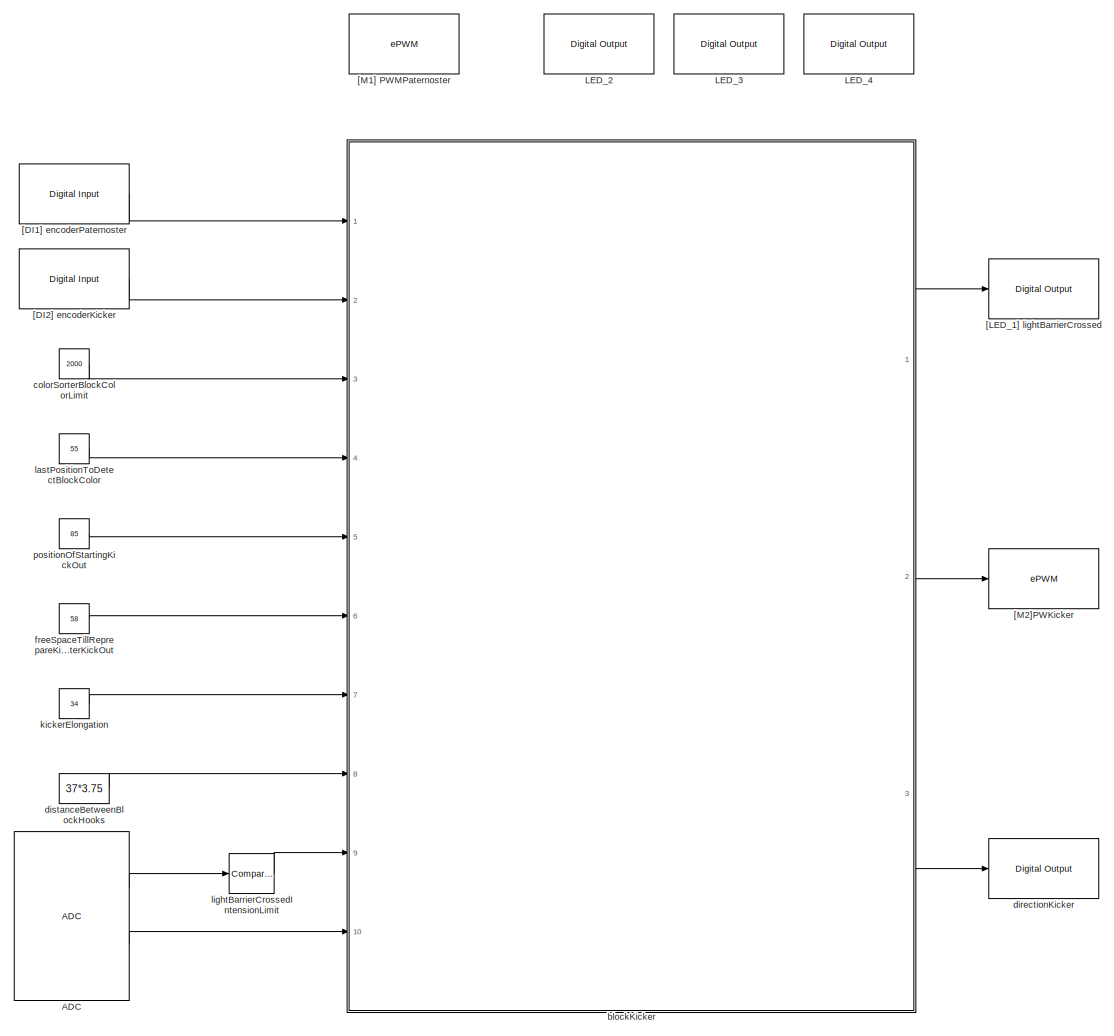
[diagram: root canvas - part 1/1, most of the canvas]
MODEL slx_4a4a8ed545a5
KIND model
BLOCK [Reference] ADC  REF=c280xlib/ADC
  Ports = [0, 2]
  SourceBlock = c280xlib/ADC
  SourceType = C280x/C2833x ADC
  Ts = 0.001
  UserDataPersistent = on
  c28xmultiPort = on
  chdma = 1
  conv0 = ADCINA0
  conv1 = ADCINA1
  conv10 = ADCINB2
  conv11 = ADCINB3
  conv12 = ADCINB4
  conv13 = ADCINB5
  conv14 = ADCINB6
  conv15 = ADCINB7
  conv2 = ADCINA2
  conv3 = ADCINA3
  conv4 = ADCINA4
  conv5 = ADCINA5
  conv6 = ADCINA6
  conv7 = ADCINA7
  conv8 = ADCINB0
  conv9 = ADCINB1
  convA0 = ADCINA0
  convA1 = ADCINA1
  convA2 = ADCINA2
  convA3 = ADCINA3
  convA4 = ADCINA4
  convA5 = ADCINA5
  convA6 = ADCINA6
  convA7 = ADCINA7
  convAB0 = ADCINA0 and ADCINB0
  convAB1 = ADCINA1 and ADCINB1
  convAB2 = ADCINA2 and ADCINB2
  convAB3 = ADCINA3 and ADCINB3
  convAB4 = ADCINA4 and ADCINB4
  convAB5 = ADCINA5 and ADCINB5
  convAB6 = ADCINA6 and ADCINB6
  convAB7 = ADCINA7 and ADCINB7
  convB0 = ADCINB0
  convB1 = ADCINB1
  convB2 = ADCINB2
  convB3 = ADCINB3
  convB4 = ADCINB4
  convB5 = ADCINB5
  convB6 = ADCINB6
  convB7 = ADCINB7
  dType = uint16
  endma = off
  numConversionsDouble = 1
  numConversionsSingle = 2
  postInterrupt = off
  sourceSOC = Software
  sourceSOC1 = Software
  sourceSOC2 = ePWMxB
  useMode = Sequential
  useModule = A
  xint2_ADCSOC = 31
BLOCK [Reference] LED_2  REF=c2833xlib/Digital Output
  GPIO_BIT0_Toggle = off
  GPIO_BIT1_Toggle = off
  GPIO_BIT2_Toggle = off
  GPIO_BIT3_Toggle = on
  GPIO_BIT4_Toggle = off
  GPIO_BIT5_Toggle = off
  GPIO_BIT6_Toggle = off
  GPIO_BIT7_Toggle = off
  GPIO_Bit0 = off
  GPIO_Bit1 = off
  GPIO_Bit2 = off
  GPIO_Bit3 = on
  GPIO_Bit4 = off
  GPIO_Bit5 = off
  GPIO_Bit6 = off
  GPIO_Bit7 = off
  GPIO_Number = GPIO56~GPIO63
  Ports = [1]
  SourceBlock = c2833xlib/Digital Output
  SourceType = C2833x GPIO Digital Output
  UserDataPersistent = on
BLOCK [Reference] LED_3  REF=c2833xlib/Digital Output
  GPIO_BIT0_Toggle = off
  GPIO_BIT1_Toggle = off
  GPIO_BIT2_Toggle = off
  GPIO_BIT3_Toggle = off
  GPIO_BIT4_Toggle = on
  GPIO_BIT5_Toggle = on
  GPIO_BIT6_Toggle = off
  GPIO_BIT7_Toggle = off
  GPIO_Bit0 = off
  GPIO_Bit1 = off
  GPIO_Bit2 = off
  GPIO_Bit3 = off
  GPIO_Bit4 = on
  GPIO_Bit5 = off
  GPIO_Bit6 = off
  GPIO_Bit7 = off
  GPIO_Number = GPIO56~GPIO63
  Ports = [1]
  SourceBlock = c2833xlib/Digital Output
  SourceType = C2833x GPIO Digital Output
  UserDataPersistent = on
BLOCK [Reference] LED_4  REF=c2833xlib/Digital Output
  GPIO_BIT0_Toggle = off
  GPIO_BIT1_Toggle = off
  GPIO_BIT2_Toggle = off
  GPIO_BIT3_Toggle = off
  GPIO_BIT4_Toggle = off
  GPIO_BIT5_Toggle = on
  GPIO_BIT6_Toggle = off
  GPIO_BIT7_Toggle = off
  GPIO_Bit0 = off
  GPIO_Bit1 = off
  GPIO_Bit2 = off
  GPIO_Bit3 = off
  GPIO_Bit4 = off
  GPIO_Bit5 = on
  GPIO_Bit6 = off
  GPIO_Bit7 = off
  GPIO_Number = GPIO56~GPIO63
  Ports = [1]
  SourceBlock = c2833xlib/Digital Output
  SourceType = C2833x GPIO Digital Output
  UserDataPersistent = on
BLOCK [Reference] [DI1] encoderPaternoster  REF=c2833xlib/Digital Input
  GPIO_Bit0 = off
  GPIO_Bit0_Qualification = Sync to SYSCLKOUT
  GPIO_Bit1 = on
  GPIO_Bit1_Qualification = Sync to SYSCLKOUT
  GPIO_Bit2 = off
  GPIO_Bit2_Qualification = Sync to SYSCLKOUT
  GPIO_Bit3 = off
  GPIO_Bit3_Qualification = Sync to SYSCLKOUT
  GPIO_Bit4 = off
  GPIO_Bit4_Qualification = Sync to SYSCLKOUT
  GPIO_Bit5 = off
  GPIO_Bit5_Qualification = Sync to SYSCLKOUT
  GPIO_Bit6 = off
  GPIO_Bit6_Qualification = Sync to SYSCLKOUT
  GPIO_Bit7 = off
  GPIO_Bit7_Qualification = Sync to SYSCLKOUT
  GPIO_Number = GPIO24~GPIO31
  Ports = [0, 1]
  Qualification_Period = -1
  SourceBlock = c2833xlib/Digital Input
  SourceType = C2833x GPIO Digital Input
  UserDataPersistent = on
  dataType = auto
  sampleTime = 0.001
BLOCK [Reference] [DI2] encoderKicker  REF=c2833xlib/Digital Input
  GPIO_Bit0 = off
  GPIO_Bit0_Qualification = Sync to SYSCLKOUT
  GPIO_Bit1 = off
  GPIO_Bit1_Qualification = Sync to SYSCLKOUT
  GPIO_Bit2 = on
  GPIO_Bit2_Qualification = Sync to SYSCLKOUT
  GPIO_Bit3 = off
  GPIO_Bit3_Qualification = Sync to SYSCLKOUT
  GPIO_Bit4 = off
  GPIO_Bit4_Qualification = Sync to SYSCLKOUT
  GPIO_Bit5 = off
  GPIO_Bit5_Qualification = Sync to SYSCLKOUT
  GPIO_Bit6 = off
  GPIO_Bit6_Qualification = Sync to SYSCLKOUT
  GPIO_Bit7 = off
  GPIO_Bit7_Qualification = Sync to SYSCLKOUT
  GPIO_Number = GPIO24~GPIO31
  Ports = [0, 1]
  Qualification_Period = -1
  SourceBlock = c2833xlib/Digital Input
  SourceType = C2833x GPIO Digital Input
  UserDataPersistent = on
  dataType = auto
  sampleTime = 0.001
BLOCK [Reference] [LED_1] lightBarrierCrossed  REF=c2833xlib/Digital Output
  GPIO_BIT0_Toggle = off
  GPIO_BIT1_Toggle = off
  GPIO_BIT2_Toggle = off
  GPIO_BIT3_Toggle = off
  GPIO_BIT4_Toggle = off
  GPIO_BIT5_Toggle = off
  GPIO_BIT6_Toggle = off
  GPIO_BIT7_Toggle = off
  GPIO_Bit0 = off
  GPIO_Bit1 = off
  GPIO_Bit2 = on
  GPIO_Bit3 = off
  GPIO_Bit4 = off
  GPIO_Bit5 = off
  GPIO_Bit6 = off
  GPIO_Bit7 = off
  GPIO_Number = GPIO56~GPIO63
  Ports = [1]
  SourceBlock = c2833xlib/Digital Output
  SourceType = C2833x GPIO Digital Output
  UserDataPersistent = on
BLOCK [Reference] [M1] PWMPaternoster  REF=c280xlib/ePWM
  CMPASource = Specify via dialog
  CMPAUnits = Clock cycles
  CMPAValue_clk = 32000
  CMPAValue_per = 50
  CMPBSource = Specify via dialog
  CMPBUnits = Percentages
  CMPBValue_clk = 32000
  CMPBValue_per = 80
  DBSource_ePWMxA = ePWMxA
  DBSource_ePWMxB = ePWMxA
  DBedgeDelay = Positive
  DBperiodSource = Specify via dialog
  DBpolarity = Active high (AH)
  FEDperiod = 0
  HRPWM_CTLMode = Phase control mode
  HRPWM_EDGMode = Both edge
  HRPWM_LoadMode = Counter equals to zero (CTR=ZERO)
  HSclockPrescale = 1
  Ports = []
  REDperiod = 0
  SourceBlock = c280xlib/ePWM
  SourceType = C280x/C2833x ePWM
  adcrequestEventA = First event
  adcrequestEventB = First event
  adcstartEventA = Counter equals to zero (CTR=Zero)
  adcstartEventB = Counter equals to zero (CTR=Zero)
  adcstartModuleA = off
  adcstartModuleB = off
  checkMode = off
  chopperDuty = 12.5%
  chopperEnable = off
  chopperFirstwidth = 1
  chopperFrequency = 1
  clockPrescale = 1
  countingMode = Up
  ePWMxACSFenable = off
  ePWMxACSFvalue = Forcing disable
  ePWMxALoadMode = Load on counter equals to zero (CTR=Zero)
  ePWMxASFreload = Zero
  ePWMxAStatus = off
  ePWMxAValue = 0
  ePWMxAactionLogic1 = Do nothing
  ePWMxAactionLogic2 = Clear
  ePWMxAactionLogic3 = Set
  ePWMxAactionLogic4 = Do nothing
  ePWMxAactionLogic5 = Do nothing
  ePWMxAactionLogic6 = Do nothing
  ePWMxAforced = No action
  ePWMxBCSFenable = off
  ePWMxBCSFvalue = Forcing disable
  ePWMxBLoadMode = Load on counter equals to zero (CTR=Zero)
  ePWMxBSFreload = Zero
  ePWMxBStatus = on
  ePWMxBValue = 0
  ePWMxBactionLogic1 = Do nothing
  ePWMxBactionLogic2 = Set
  ePWMxBactionLogic3 = Do nothing
  ePWMxBactionLogic4 = Do nothing
  ePWMxBactionLogic5 = Clear
  ePWMxBactionLogic6 = Do nothing
  ePWMxBforced = No action
  enCMPAshadow = Counter equals to zero
  enCMPBshadow = Counter equals to zero
  enHRPWM = off
  enSFO = on
  enTzCbcIntr = off
  enTzOstIntr = off
  enableDBePWMxA = off
  enableDBePWMxB = off
  intEn = off
  intPrd = First event
  intSel = Counter equals to zero (CTR=Zero)
  periodUnits = Clock cycles
  phaseActive = 0
  phaseActiveEnable = Disable
  phaseDirection = Count down after sync
  synchronizationEnable = off
  synchronizationOption = Disable
  tbshadow = Counter equals to zero
  timerPeriod = -1
  timerPeriod_clk = 64000
  timerPeriod_sec = 0.0001
  timerSource = Specify via dialog
  tripZoneoption = One-shot trip (OSHT)
  tripZonesource = Specify via dialog
  tzselCBC1 = off
  tzselCBC2 = off
  tzselCBC3 = off
  tzselCBC4 = off
  tzselCBC5 = off
  tzselCBC6 = off
  tzselOSHT1 = off
  tzselOSHT2 = off
  tzselOSHT3 = off
  tzselOSHT4 = off
  tzselOSHT5 = off
  tzselOSHT6 = off
  useModule = ePWM2
BLOCK [Reference] [M2]PWKicker  REF=c280xlib/ePWM
  CMPASource = Specify via dialog
  CMPAUnits = Clock cycles
  CMPAValue_clk = 32000
  CMPAValue_per = 50
  CMPBSource = Input port
  CMPBUnits = Percentages
  CMPBValue_clk = 32000
  CMPBValue_per = 0
  DBSource_ePWMxA = ePWMxA
  DBSource_ePWMxB = ePWMxA
  DBedgeDelay = Positive
  DBperiodSource = Specify via dialog
  DBpolarity = Active high (AH)
  FEDperiod = 0
  HRPWM_CTLMode = Phase control mode
  HRPWM_EDGMode = Both edge
  HRPWM_LoadMode = Counter equals to zero (CTR=ZERO)
  HSclockPrescale = 1
  Ports = [1]
  REDperiod = 0
  SourceBlock = c280xlib/ePWM
  SourceType = C280x/C2833x ePWM
  adcrequestEventA = First event
  adcrequestEventB = First event
  adcstartEventA = Counter equals to zero (CTR=Zero)
  adcstartEventB = Counter equals to zero (CTR=Zero)
  adcstartModuleA = off
  adcstartModuleB = off
  checkMode = off
  chopperDuty = 12.5%
  chopperEnable = off
  chopperFirstwidth = 1
  chopperFrequency = 1
  clockPrescale = 1
  countingMode = Up
  ePWMxACSFenable = off
  ePWMxACSFvalue = Forcing disable
  ePWMxALoadMode = Load on counter equals to zero (CTR=Zero)
  ePWMxASFreload = Zero
  ePWMxAStatus = off
  ePWMxAValue = 0
  ePWMxAactionLogic1 = Do nothing
  ePWMxAactionLogic2 = Clear
  ePWMxAactionLogic3 = Set
  ePWMxAactionLogic4 = Do nothing
  ePWMxAactionLogic5 = Do nothing
  ePWMxAactionLogic6 = Do nothing
  ePWMxAforced = No action
  ePWMxBCSFenable = off
  ePWMxBCSFvalue = Forcing disable
  ePWMxBLoadMode = Load on counter equals to zero (CTR=Zero)
  ePWMxBSFreload = Zero
  ePWMxBStatus = on
  ePWMxBValue = 0
  ePWMxBactionLogic1 = Do nothing
  ePWMxBactionLogic2 = Set
  ePWMxBactionLogic3 = Do nothing
  ePWMxBactionLogic4 = Do nothing
  ePWMxBactionLogic5 = Clear
  ePWMxBactionLogic6 = Do nothing
  ePWMxBforced = No action
  enCMPAshadow = Counter equals to zero
  enCMPBshadow = Counter equals to zero
  enHRPWM = off
  enSFO = on
  enTzCbcIntr = off
  enTzOstIntr = off
  enableDBePWMxA = off
  enableDBePWMxB = off
  intEn = off
  intPrd = First event
  intSel = Counter equals to zero (CTR=Zero)
  periodUnits = Clock cycles
  phaseActive = 0
  phaseActiveEnable = Disable
  phaseDirection = Count down after sync
  synchronizationEnable = off
  synchronizationOption = Disable
  tbshadow = Counter equals to zero
  timerPeriod = -1
  timerPeriod_clk = 64000
  timerPeriod_sec = 0.0001
  timerSource = Specify via dialog
  tripZoneoption = One-shot trip (OSHT)
  tripZonesource = Specify via dialog
  tzselCBC1 = off
  tzselCBC2 = off
  tzselCBC3 = off
  tzselCBC4 = off
  tzselCBC5 = off
  tzselCBC6 = off
  tzselOSHT1 = off
  tzselOSHT2 = off
  tzselOSHT3 = off
  tzselOSHT4 = off
  tzselOSHT5 = off
  tzselOSHT6 = off
  useModule = ePWM1
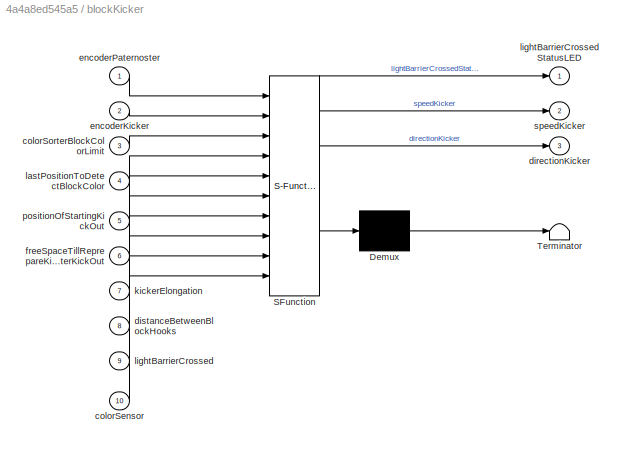
BLOCK [SubSystem] blockKicker
  ErrorFcn = Stateflow.Translate.translate
  PermitHierarchicalResolution = ExplicitOnly
  Ports = [10, 3]
  RequestExecContextInheritance = off
  SFBlockType = Chart
  TreatAsAtomicUnit = on
BLOCK [Demux] blockKicker/ Demux 
  Outputs = 1
  Ports = [1, 1]
BLOCK [S-Function] blockKicker/ SFunction 
  EnableBusSupport = on
  FunctionName = sf_sfun
  PortCounts = [10 4]
  Ports = [10, 4]
  Tag = Stateflow S-Function blockKicker_tIB 1
BLOCK [Terminator] blockKicker/ Terminator 
BLOCK [Inport] blockKicker/colorSensor
  IconDisplay = Port number
  Port = 10
BLOCK [Inport] blockKicker/colorSorterBlockColorLimit
  IconDisplay = Port number
  Port = 3
BLOCK [Outport] blockKicker/directionKicker
  IconDisplay = Port number
  Port = 3
BLOCK [Inport] blockKicker/distanceBetweenBlockHooks
  IconDisplay = Port number
  Port = 8
BLOCK [Inport] blockKicker/encoderKicker
  IconDisplay = Port number
  Port = 2
BLOCK [Inport] blockKicker/encoderPaternoster
  IconDisplay = Port number
BLOCK [Inport] blockKicker/freeSpaceTillReprepareKickerAfterKickOut
  IconDisplay = Port number
  Port = 6
BLOCK [Inport] blockKicker/kickerElongation
  IconDisplay = Port number
  Port = 7
BLOCK [Inport] blockKicker/lastPositionToDetectBlockColor
  IconDisplay = Port number
  Port = 4
BLOCK [Inport] blockKicker/lightBarrierCrossed
  IconDisplay = Port number
  Port = 9
BLOCK [Outport] blockKicker/lightBarrierCrossedStatusLED
  IconDisplay = Port number
BLOCK [Inport] blockKicker/positionOfStartingKickOut
  IconDisplay = Port number
  Port = 5
BLOCK [Outport] blockKicker/speedKicker
  IconDisplay = Port number
  Port = 2
BLOCK [Constant] colorSorterBlockColorLimit
  OutDataTypeStr = uint16
  OutMax = 4095
  OutMin = 0
  Value = 2000
BLOCK [Reference] directionKicker  REF=c2833xlib/Digital Output
  GPIO_BIT0_Toggle = off
  GPIO_BIT1_Toggle = off
  GPIO_BIT2_Toggle = off
  GPIO_BIT3_Toggle = off
  GPIO_BIT4_Toggle = off
  GPIO_BIT5_Toggle = off
  GPIO_BIT6_Toggle = off
  GPIO_BIT7_Toggle = off
  GPIO_Bit0 = off
  GPIO_Bit1 = off
  GPIO_Bit2 = off
  GPIO_Bit3 = off
  GPIO_Bit4 = on
  GPIO_Bit5 = off
  GPIO_Bit6 = off
  GPIO_Bit7 = off
  GPIO_Number = GPIO16~GPIO23
  Ports = [1]
  SourceBlock = c2833xlib/Digital Output
  SourceType = C2833x GPIO Digital Output
  UserDataPersistent = on
BLOCK [Constant] distanceBetweenBlockHooks
  OutDataTypeStr = uint16
  OutMin = 0
  Value = 37*3.75
BLOCK [Constant] freeSpaceTillReprepareKickerAfterKickOut
  OutDataTypeStr = uint32
  OutMin = 0
  Value = 58
BLOCK [Constant] kickerElongation
  OutDataTypeStr = uint16
  OutMin = 0
  Value = 34
BLOCK [Constant] lastPositionToDetectBlockColor
  OutDataTypeStr = uint32
  OutMin = 0
  Value = 55
BLOCK [Reference] lightBarrierCrossedIntensionLimit  REF=simulink/Logic and Bit
Operations/Compare
To Constant
  OutDataTypeStr = boolean
  Ports = [1, 1]
  SourceBlock = simulink/Logic and Bit\nOperations/Compare\nTo Constant
  SourceType = Compare To Constant
  ZeroCross = on
  const = 1360
  relop = <
BLOCK [Constant] positionOfStartingKickOut
  OutDataTypeStr = uint32
  OutMin = 0
  Value = 85
LINE ADC:1 -> lightBarrierCrossedIntensionLimit:1
LINE ADC:2 -> blockKicker:10
LINE [DI1] encoderPaternoster:1 -> blockKicker:1
LINE [DI2] encoderKicker:1 -> blockKicker:2
LINE blockKicker:1 -> [LED_1] lightBarrierCrossed:1
LINE blockKicker:2 -> [M2]PWKicker:1
LINE blockKicker:3 -> directionKicker:1
LINE colorSorterBlockColorLimit:1 -> blockKicker:3
LINE distanceBetweenBlockHooks:1 -> blockKicker:8
LINE freeSpaceTillReprepareKickerAfterKickOut:1 -> blockKicker:6
LINE kickerElongation:1 -> blockKicker:7
LINE lastPositionToDetectBlockColor:1 -> blockKicker:4
LINE lightBarrierCrossedIntensionLimit:1 -> blockKicker:9
LINE positionOfStartingKickOut:1 -> blockKicker:5
CHART blockKicker states=38 transitions=44
  STATE_LABEL 'lightBarrier_controller'
  STATE_LABEL 'idle\nentry: lightBarrierCrossedStatusLED = false;'
  STATE_LABEL 'lightBarrierCrossed\nentry: send(counterFromLightBarrierCrossed.RESET);\n send(color_controller.NEXTBLOCK);\n lightBarrierCrossedStatusLED = true;'
  STATE_LABEL '/{kicker.kicker_controller.enqueuedBlocksToKick =uint16( 0)}'
  STATE_LABEL '[lightBarrierCrossed >= 1]'
  STATE_LABEL '[lightBarrierCrossed <1]'
  STATE_LABEL 'idle\nentry: lightBarrierCrossedStatusLED = false;'
  STATE_LABEL 'lightBarrierCrossed\nentry: send(counterFromLightBarrierCrossed.RESET);\n send(color_controller.NEXTBLOCK);\n lightBarrierCrossedStatusLED = true;'
  STATE_LABEL 'kicker'
  STATE_LABEL 'kickerCounter'
  STATE_LABEL 'start\nentry: count = uint32(0);\n'
  STATE_LABEL 'highLevel'
  STATE_LABEL 'lowLevel\nentry: count = count + 1;'
  STATE_LABEL '[encoderKicker > 0]'
  STATE_LABEL '[encoderKicker > 0]'
  STATE_LABEL '[encoderKicker == 0]'
  STATE_LABEL 'RESET'
  STATE_LABEL 'kicker_controller'
  STATE_LABEL 'kick\nentry: send(counterFromKick.RESET);\n enqueuedBlocksToKick = enqueuedBlocksToKick -1;\n'
  STATE_LABEL 'startKickerMovement\nentry: send(kicker.kickerCounter.RESET);\n speedKicker = int16(100);\n directionKicker = false;'
  STATE_LABEL 'stopKickerMovement\nentry: speedKicker = int16(0);'
  STATE_LABEL '[kicker.kickerCounter.count >= kickerElongation]'
  STATE_LABEL 'idle\nentry: speedKicker = int16(0);\n'
  STATE_LABEL 'reprepareKicker\n'
  STATE_LABEL 'startKickerMovement\nentry: send(kicker.kickerCounter.RESET);\n speedKicker = int16(100);\n directionKicker = true;'
  STATE_LABEL 'stopKickerMovement\nentry: speedKicker = int16(0);'
  STATE_LABEL '[kicker.kickerCounter.count >= kickerElongation]'
  STATE_LABEL '[[counterFromLightBarrierCrossed.count >= positionOfStartingKickOut] && [enqueuedBlocksToKick > 0]]'
  STATE_LABEL '[counterFromKick.count >= freeSpaceTillReprepareKickerAfterKickOut]'
  STATE_LABEL 'kickerCounter'
  STATE_LABEL 'start\nentry: count = uint32(0);\n'
  STATE_LABEL 'highLevel'
  STATE_LABEL 'lowLevel\nentry: count = count + 1;'
  STATE_LABEL '[encoderKicker > 0]'
  STATE_LABEL '[encoderKicker > 0]'
  STATE_LABEL '[encoderKicker == 0]'
  STATE_LABEL 'RESET'
  STATE_LABEL 'start\nentry: count = uint32(0);\n'
  STATE_LABEL 'highLevel'
  STATE_LABEL 'lowLevel\nentry: count = count + 1;'
